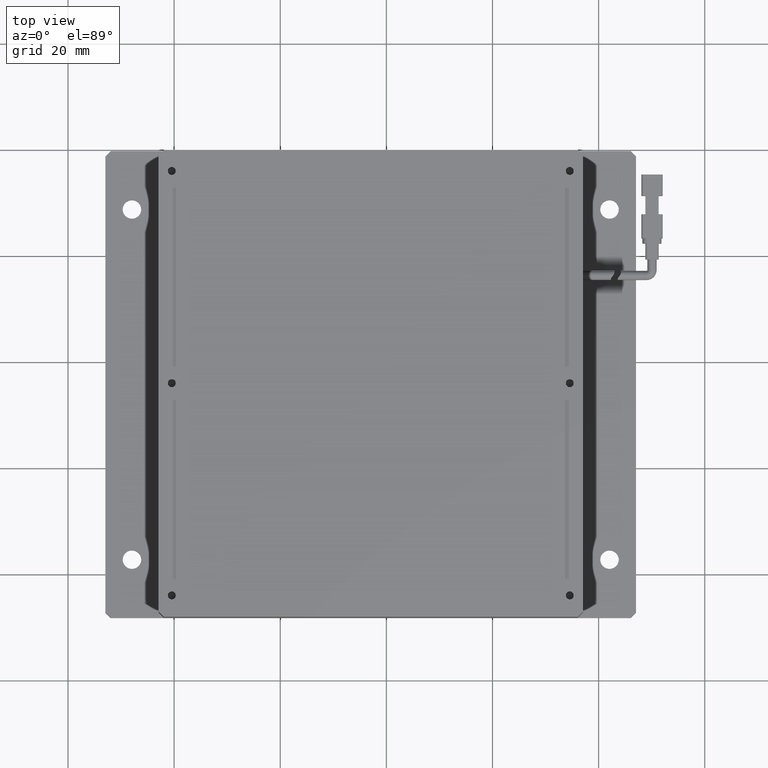
[diagram: clean part render]
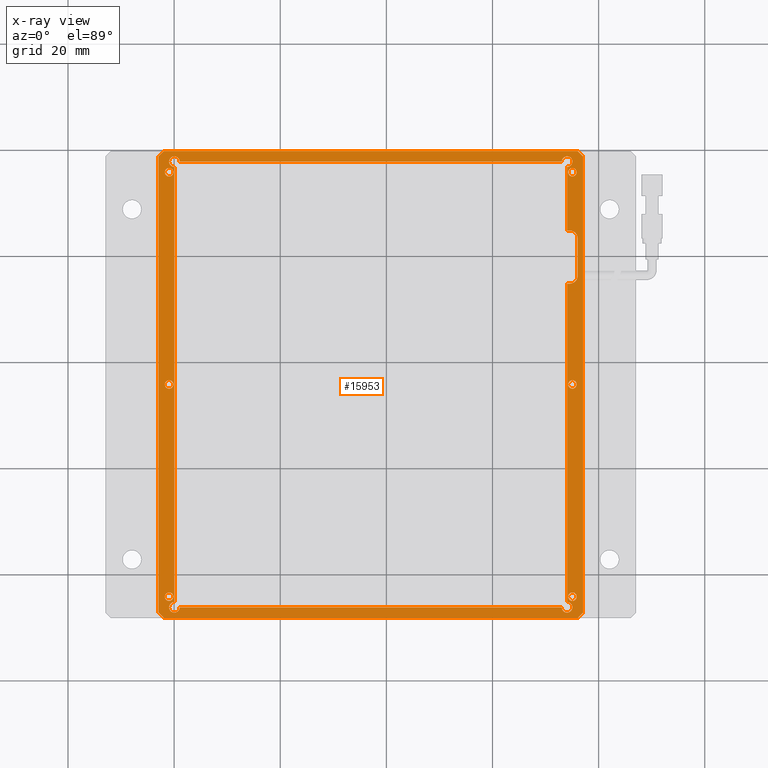
[diagram: x-ray — body ghosted, one internal face saturated and labeled with its STEP entity id]
A machine part, top view, then the same camera in x-ray: the body is ghosted and one INTERNAL B-rep face — a face not visible from any outside direction — is saturated and labeled: STEP entity #15953.
In plain terms, the highlighted planar face has unit normal (0, 0, -1).
Its self-contained STEP definition (entity closure, byte-faithful):
#40 = PLANE ( 'NONE',  #13356 ) ;
#41 = CIRCLE ( 'NONE', #12259, 0.9999999999999974500 ) ;
#86 = CARTESIAN_POINT ( 'NONE',  ( -20.94768995799924800, -4.200076365024778500, -4.547577592273199800E-012 ) ) ;
#107 = CIRCLE ( 'NONE', #8220, 0.7999999999999986000 ) ;
#110 = EDGE_LOOP ( 'NONE', ( #2305, #6990 ) ) ;
#448 = VERTEX_POINT ( 'NONE', #789 ) ;
#537 = VERTEX_POINT ( 'NONE', #3235 ) ;
#638 = CARTESIAN_POINT ( 'NONE',  ( 53.05231004200079100, 37.79992363497522900, -4.547577592273199800E-012 ) ) ;
#675 = CIRCLE ( 'NONE', #10622, 0.7999999999999951600 ) ;
#739 = ORIENTED_EDGE ( 'NONE', *, *, #7200, .T. ) ;
#789 = CARTESIAN_POINT ( 'NONE',  ( 56.05231004200073400, -48.20007636502477800, -4.550179677487165000E-012 ) ) ;
#844 = CARTESIAN_POINT ( 'NONE',  ( 54.25231004200075800, 35.79992363497521500, -4.547577592273199800E-012 ) ) ;
#857 = DIRECTION ( 'NONE',  ( -1.000000000000000000, 0.0000000000000000000, 0.0000000000000000000 ) ) ;
#868 = VERTEX_POINT ( 'NONE', #11797 ) ;
#874 = VERTEX_POINT ( 'NONE', #12336 ) ;
#885 = VERTEX_POINT ( 'NONE', #12073 ) ;
#893 = CARTESIAN_POINT ( 'NONE',  ( -19.94768995799928700, -46.20007636502478500, -4.547577592273199800E-012 ) ) ;
#973 = CARTESIAN_POINT ( 'NONE',  ( -21.94768995799924800, -48.20007636502477800, -4.547577592273199800E-012 ) ) ;
#981 = ORIENTED_EDGE ( 'NONE', *, *, #15562, .T. ) ;
#985 = ORIENTED_EDGE ( 'NONE', *, *, #17625, .T. ) ;
#1054 = FACE_OUTER_BOUND ( 'NONE', #2012, .T. ) ;
#1078 = EDGE_CURVE ( 'NONE', #3083, #13991, #41, .T. ) ;
#1183 = AXIS2_PLACEMENT_3D ( 'NONE', #4457, #13961, #5846 ) ;
#1335 = DIRECTION ( 'NONE',  ( 1.000000000000000000, 0.0000000000000000000, 0.0000000000000000000 ) ) ;
#1341 = VECTOR ( 'NONE', #9112, 1000.000000000000000 ) ;
#1434 = ORIENTED_EDGE ( 'NONE', *, *, #8481, .T. ) ;
#1465 = DIRECTION ( 'NONE',  ( -1.000000000000000000, 0.0000000000000000000, 0.0000000000000000000 ) ) ;
#1515 = VECTOR ( 'NONE', #15545, 1000.000000000000000 ) ;
#1519 = AXIS2_PLACEMENT_3D ( 'NONE', #17766, #9677, #1335 ) ;
#1550 = EDGE_CURVE ( 'NONE', #11940, #6948, #15685, .T. ) ;
#1619 = EDGE_LOOP ( 'NONE', ( #5171, #1739 ) ) ;
#1739 = ORIENTED_EDGE ( 'NONE', *, *, #1550, .T. ) ;
#1797 = CARTESIAN_POINT ( 'NONE',  ( -21.74768995799924600, 35.79992363497524400, -4.547577592273199800E-012 ) ) ;
#1882 = DIRECTION ( 'NONE',  ( -1.000000000000000000, -0.0000000000000000000, 0.0000000000000000000 ) ) ;
#1887 = CIRCLE ( 'NONE', #6848, 0.7999999999999986000 ) ;
#1960 = VECTOR ( 'NONE', #3756, 1000.000000000000100 ) ;
#1982 = ORIENTED_EDGE ( 'NONE', *, *, #9308, .T. ) ;
#1994 = CIRCLE ( 'NONE', #14494, 1.500000000000001300 ) ;
#2012 = EDGE_LOOP ( 'NONE', ( #2193, #4552, #6192, #12768, #8351, #13719, #9264, #12064 ) ) ;
#2104 = VERTEX_POINT ( 'NONE', #10004 ) ;
#2189 = EDGE_CURVE ( 'NONE', #16963, #11977, #17801, .T. ) ;
#2193 = ORIENTED_EDGE ( 'NONE', *, *, #5331, .T. ) ;
#2219 = CARTESIAN_POINT ( 'NONE',  ( -20.94768995799924800, -44.20007636502477800, -4.547577592273199800E-012 ) ) ;
#2243 = CARTESIAN_POINT ( 'NONE',  ( -18.94768995799929100, -46.20007636502479900, -4.547577592273199800E-012 ) ) ;
#2292 = EDGE_CURVE ( 'NONE', #2104, #16566, #8921, .T. ) ;
#2301 = DIRECTION ( 'NONE',  ( -1.000000000000000000, 0.0000000000000000000, 0.0000000000000000000 ) ) ;
#2305 = ORIENTED_EDGE ( 'NONE', *, *, #2292, .T. ) ;
#2310 = VERTEX_POINT ( 'NONE', #6438 ) ;
#2376 = CARTESIAN_POINT ( 'NONE',  ( -22.94768995799925900, 38.79992363497520100, -4.547577592273199800E-012 ) ) ;
#2420 = AXIS2_PLACEMENT_3D ( 'NONE', #15618, #15330, #15208 ) ;
#2424 = CIRCLE ( 'NONE', #11770, 0.7999999999999986000 ) ;
#2527 = LINE ( 'NONE', #12565, #6269 ) ;
#2568 = CARTESIAN_POINT ( 'NONE',  ( -20.14768995799924800, 35.79992363497524400, -4.547577592273199800E-012 ) ) ;
#2706 = CARTESIAN_POINT ( 'NONE',  ( 55.05231004200074800, -44.20007636502477800, -4.547577592273199800E-012 ) ) ;
#2746 = VERTEX_POINT ( 'NONE', #2243 ) ;
#2775 = CARTESIAN_POINT ( 'NONE',  ( -20.94768995799928700, -46.20007636502478500, -4.547577592273199800E-012 ) ) ;
#2842 = CIRCLE ( 'NONE', #6580, 1.000000000000000900 ) ;
#2853 = CARTESIAN_POINT ( 'NONE',  ( -22.94768995799925200, 38.79992363497521500, -4.548228113576691100E-012 ) ) ;
#2919 = CARTESIAN_POINT ( 'NONE',  ( 54.05231004200079100, 39.79992363497522200, -4.547577592273199800E-012 ) ) ;
#2923 = EDGE_LOOP ( 'NONE', ( #13290, #14742 ) ) ;
#3019 = VECTOR ( 'NONE', #10377, 1000.000000000000000 ) ;
#3083 = VERTEX_POINT ( 'NONE', #9641 ) ;
#3090 = EDGE_CURVE ( 'NONE', #6249, #6785, #5089, .T. ) ;
#3133 = EDGE_CURVE ( 'NONE', #2310, #16216, #1994, .T. ) ;
#3226 = ORIENTED_EDGE ( 'NONE', *, *, #15020, .T. ) ;
#3229 = DIRECTION ( 'NONE',  ( 0.0000000000000000000, 0.0000000000000000000, 1.000000000000000000 ) ) ;
#3235 = CARTESIAN_POINT ( 'NONE',  ( -19.94768995799928700, -45.20007636502478500, -4.547577592273199800E-012 ) ) ;
#3362 = CIRCLE ( 'NONE', #1519, 1.500000000000001300 ) ;
#3585 = EDGE_CURVE ( 'NONE', #11977, #16963, #7909, .T. ) ;
#3670 = DIRECTION ( 'NONE',  ( -1.000000000000000000, 0.0000000000000000000, 0.0000000000000000000 ) ) ;
#3756 = DIRECTION ( 'NONE',  ( 0.7071067811865408000, 0.7071067811865541200, 0.0000000000000000000 ) ) ;
#3817 = DIRECTION ( 'NONE',  ( -0.0000000000000000000, -1.000000000000000000, 0.0000000000000000000 ) ) ;
#3859 = EDGE_LOOP ( 'NONE', ( #15822, #17573, #8525, #981, #9547, #17242, #10624, #13864, #17180, #10233, #7062, #985, #9882, #14677, #1434, #10874 ) ) ;
#3894 = DIRECTION ( 'NONE',  ( -1.000000000000000000, 0.0000000000000000000, 0.0000000000000000000 ) ) ;
#3956 = DIRECTION ( 'NONE',  ( 0.0000000000000000000, 0.0000000000000000000, 1.000000000000000000 ) ) ;
#4024 = CARTESIAN_POINT ( 'NONE',  ( 55.05231004200074800, -4.200076365024778500, -4.547577592273199800E-012 ) ) ;
#4147 = DIRECTION ( 'NONE',  ( -1.000000000000000000, 0.0000000000000000000, 0.0000000000000000000 ) ) ;
#4155 = AXIS2_PLACEMENT_3D ( 'NONE', #6828, #16300, #8222 ) ;
#4424 = CARTESIAN_POINT ( 'NONE',  ( 56.05231004200074800, 14.79992363497521200, -4.547577592273199800E-012 ) ) ;
#4457 = CARTESIAN_POINT ( 'NONE',  ( 54.05231004200079100, 37.79992363497522900, -4.547577592273199800E-012 ) ) ;
#4470 = EDGE_LOOP ( 'NONE', ( #739, #8317 ) ) ;
#4506 = AXIS2_PLACEMENT_3D ( 'NONE', #17283, #9197, #857 ) ;
#4552 = ORIENTED_EDGE ( 'NONE', *, *, #9924, .T. ) ;
#4677 = ORIENTED_EDGE ( 'NONE', *, *, #2189, .T. ) ;
#4723 = CARTESIAN_POINT ( 'NONE',  ( -22.94768995799924800, -48.20007636502477800, -4.547577592273199800E-012 ) ) ;
#4805 = FACE_BOUND ( 'NONE', #11012, .T. ) ;
#4818 = AXIS2_PLACEMENT_3D ( 'NONE', #8161, #17593, #9519 ) ;
#4924 = VERTEX_POINT ( 'NONE', #8513 ) ;
#5089 = LINE ( 'NONE', #9470, #1341 ) ;
#5171 = ORIENTED_EDGE ( 'NONE', *, *, #12489, .T. ) ;
#5277 = VERTEX_POINT ( 'NONE', #638 ) ;
#5331 = EDGE_CURVE ( 'NONE', #448, #8791, #9810, .T. ) ;
#5334 = AXIS2_PLACEMENT_3D ( 'NONE', #4024, #3956, #3894 ) ;
#5401 = CIRCLE ( 'NONE', #13705, 0.9999999999999974500 ) ;
#5494 = DIRECTION ( 'NONE',  ( 1.000000000000000000, 0.0000000000000000000, 0.0000000000000000000 ) ) ;
#5556 = EDGE_CURVE ( 'NONE', #874, #15688, #675, .T. ) ;
#5559 = DIRECTION ( 'NONE',  ( 0.0000000000000000000, 0.0000000000000000000, 1.000000000000000000 ) ) ;
#5623 = LINE ( 'NONE', #2919, #12828 ) ;
#5633 = LINE ( 'NONE', #16775, #12418 ) ;
#5672 = CARTESIAN_POINT ( 'NONE',  ( 54.55231004200074800, 16.29992363497521200, -4.547577592273199800E-012 ) ) ;
#5696 = VECTOR ( 'NONE', #10929, 1000.000000000000000 ) ;
#5747 = DIRECTION ( 'NONE',  ( -1.000000000000000000, 0.0000000000000000000, 0.0000000000000000000 ) ) ;
#5799 = DIRECTION ( 'NONE',  ( 0.0000000000000000000, 0.0000000000000000000, -1.000000000000000000 ) ) ;
#5804 = DIRECTION ( 'NONE',  ( 1.000000000000000000, 0.0000000000000000000, 0.0000000000000000000 ) ) ;
#5833 = CARTESIAN_POINT ( 'NONE',  ( -20.94768995799924800, 35.79992363497524400, -4.547577592273199800E-012 ) ) ;
#5846 = DIRECTION ( 'NONE',  ( -1.000000000000000000, 0.0000000000000000000, 0.0000000000000000000 ) ) ;
#5864 = VERTEX_POINT ( 'NONE', #8720 ) ;
#5990 = VERTEX_POINT ( 'NONE', #11784 ) ;
#6137 = LINE ( 'NONE', #9502, #5696 ) ;
#6180 = VECTOR ( 'NONE', #1882, 1000.000000000000000 ) ;
#6192 = ORIENTED_EDGE ( 'NONE', *, *, #3090, .T. ) ;
#6207 = CARTESIAN_POINT ( 'NONE',  ( -20.94768995799924800, -44.20007636502477800, -4.547577592273199800E-012 ) ) ;
#6249 = VERTEX_POINT ( 'NONE', #16589 ) ;
#6269 = VECTOR ( 'NONE', #7276, 1000.000000000000000 ) ;
#6438 = CARTESIAN_POINT ( 'NONE',  ( 54.55231004200074800, 14.79992363497521200, -4.547577592273199800E-012 ) ) ;
#6580 = AXIS2_PLACEMENT_3D ( 'NONE', #7654, #17089, #8986 ) ;
#6583 = EDGE_CURVE ( 'NONE', #16216, #8896, #17317, .T. ) ;
#6670 = CARTESIAN_POINT ( 'NONE',  ( 55.05231004200074800, 35.79992363497521500, -4.547577592273199800E-012 ) ) ;
#6728 = DIRECTION ( 'NONE',  ( 0.0000000000000000000, 1.000000000000000000, 0.0000000000000000000 ) ) ;
#6732 = AXIS2_PLACEMENT_3D ( 'NONE', #2219, #11834, #3670 ) ;
#6785 = VERTEX_POINT ( 'NONE', #2853 ) ;
#6828 = CARTESIAN_POINT ( 'NONE',  ( 55.05231004200074800, 35.79992363497521500, -4.547577592273199800E-012 ) ) ;
#6848 = AXIS2_PLACEMENT_3D ( 'NONE', #5833, #15337, #7248 ) ;
#6948 = VERTEX_POINT ( 'NONE', #11510 ) ;
#6974 = CIRCLE ( 'NONE', #4506, 0.9999999999999974500 ) ;
#6990 = ORIENTED_EDGE ( 'NONE', *, *, #12092, .T. ) ;
#7033 = VECTOR ( 'NONE', #5804, 1000.000000000000000 ) ;
#7062 = ORIENTED_EDGE ( 'NONE', *, *, #11281, .T. ) ;
#7175 = CIRCLE ( 'NONE', #4155, 0.7999999999999951600 ) ;
#7200 = EDGE_CURVE ( 'NONE', #16036, #8601, #16640, .T. ) ;
#7248 = DIRECTION ( 'NONE',  ( -1.000000000000000000, 0.0000000000000000000, 0.0000000000000000000 ) ) ;
#7276 = DIRECTION ( 'NONE',  ( 0.0000000000000000000, 1.000000000000000000, 0.0000000000000000000 ) ) ;
#7317 = LINE ( 'NONE', #8039, #10933 ) ;
#7423 = VECTOR ( 'NONE', #3817, 1000.000000000000000 ) ;
#7460 = VERTEX_POINT ( 'NONE', #11656 ) ;
#7533 = CIRCLE ( 'NONE', #17484, 0.7999999999999951600 ) ;
#7630 = DIRECTION ( 'NONE',  ( -1.000000000000000000, 0.0000000000000000000, 0.0000000000000000000 ) ) ;
#7654 = CARTESIAN_POINT ( 'NONE',  ( 54.05231004200079100, -46.20007636502478500, -4.547577592273199800E-012 ) ) ;
#7712 = EDGE_CURVE ( 'NONE', #9837, #448, #6137, .T. ) ;
#7736 = VECTOR ( 'NONE', #10662, 1000.000000000000100 ) ;
#7777 = ORIENTED_EDGE ( 'NONE', *, *, #3585, .T. ) ;
#7850 = CIRCLE ( 'NONE', #16986, 0.9999999999999974500 ) ;
#7854 = EDGE_CURVE ( 'NONE', #12481, #5277, #14640, .T. ) ;
#7862 = CARTESIAN_POINT ( 'NONE',  ( -19.94768995799928700, 36.79992363497522900, -4.547577592273199800E-012 ) ) ;
#7868 = VERTEX_POINT ( 'NONE', #8555 ) ;
#7881 = VERTEX_POINT ( 'NONE', #9970 ) ;
#7909 = CIRCLE ( 'NONE', #2420, 0.7999999999999951600 ) ;
#7960 = CARTESIAN_POINT ( 'NONE',  ( 57.05231004200075500, -48.20007636502477800, -4.547577592273199800E-012 ) ) ;
#8039 = CARTESIAN_POINT ( 'NONE',  ( 56.05231004200076200, 39.79992363497522200, -4.547577592273199800E-012 ) ) ;
#8067 = DIRECTION ( 'NONE',  ( -1.000000000000000000, 0.0000000000000000000, 0.0000000000000000000 ) ) ;
#8079 = FACE_BOUND ( 'NONE', #3859, .T. ) ;
#8161 = CARTESIAN_POINT ( 'NONE',  ( -20.94768995799924800, 35.79992363497524400, -4.547577592273199800E-012 ) ) ;
#8212 = CARTESIAN_POINT ( 'NONE',  ( 54.05231004200079100, 36.79992363497522900, -4.547577592273199800E-012 ) ) ;
#8220 = AXIS2_PLACEMENT_3D ( 'NONE', #86, #9791, #1465 ) ;
#8222 = DIRECTION ( 'NONE',  ( -1.000000000000000000, 0.0000000000000000000, 0.0000000000000000000 ) ) ;
#8317 = ORIENTED_EDGE ( 'NONE', *, *, #16512, .T. ) ;
#8351 = ORIENTED_EDGE ( 'NONE', *, *, #16166, .T. ) ;
#8378 = VERTEX_POINT ( 'NONE', #16922 ) ;
#8478 = FACE_BOUND ( 'NONE', #11379, .T. ) ;
#8481 = EDGE_CURVE ( 'NONE', #868, #3083, #6974, .T. ) ;
#8497 = VERTEX_POINT ( 'NONE', #11873 ) ;
#8513 = CARTESIAN_POINT ( 'NONE',  ( 54.05231004200079100, 24.79992363497521900, -4.547577592273199800E-012 ) ) ;
#8525 = ORIENTED_EDGE ( 'NONE', *, *, #11719, .T. ) ;
#8555 = CARTESIAN_POINT ( 'NONE',  ( 54.55231004200074800, 24.79992363497521900, -4.547577592273199800E-012 ) ) ;
#8601 = VERTEX_POINT ( 'NONE', #2568 ) ;
#8720 = CARTESIAN_POINT ( 'NONE',  ( -21.74768995799924600, -44.20007636502477800, -4.547577592273199800E-012 ) ) ;
#8791 = VERTEX_POINT ( 'NONE', #11242 ) ;
#8896 = VERTEX_POINT ( 'NONE', #10052 ) ;
#8921 = CIRCLE ( 'NONE', #11304, 0.7999999999999986000 ) ;
#8941 = LINE ( 'NONE', #14184, #1515 ) ;
#8956 = CARTESIAN_POINT ( 'NONE',  ( -21.94768995799926300, 39.79992363497522200, -4.550179677487165000E-012 ) ) ;
#8986 = DIRECTION ( 'NONE',  ( -1.000000000000000000, -6.938893903907222100E-015, 0.0000000000000000000 ) ) ;
#9112 = DIRECTION ( 'NONE',  ( -0.0000000000000000000, 1.000000000000000000, 0.0000000000000000000 ) ) ;
#9197 = DIRECTION ( 'NONE',  ( 0.0000000000000000000, 0.0000000000000000000, 1.000000000000000000 ) ) ;
#9264 = ORIENTED_EDGE ( 'NONE', *, *, #16914, .T. ) ;
#9308 = EDGE_CURVE ( 'NONE', #7881, #5864, #12602, .T. ) ;
#9470 = CARTESIAN_POINT ( 'NONE',  ( -22.94768995799924800, -48.20007636502477800, -4.547577592273199800E-012 ) ) ;
#9502 = CARTESIAN_POINT ( 'NONE',  ( 57.05231004200075500, -47.20007636502479200, -4.547577592273199800E-012 ) ) ;
#9519 = DIRECTION ( 'NONE',  ( -1.000000000000000000, 0.0000000000000000000, 0.0000000000000000000 ) ) ;
#9547 = ORIENTED_EDGE ( 'NONE', *, *, #13275, .T. ) ;
#9641 = CARTESIAN_POINT ( 'NONE',  ( -20.94768995799928700, 37.79992363497522900, -4.547577592273199800E-012 ) ) ;
#9677 = DIRECTION ( 'NONE',  ( 0.0000000000000000000, 0.0000000000000000000, 1.000000000000000000 ) ) ;
#9791 = DIRECTION ( 'NONE',  ( 0.0000000000000000000, 0.0000000000000000000, 1.000000000000000000 ) ) ;
#9810 = LINE ( 'NONE', #4723, #6180 ) ;
#9837 = VERTEX_POINT ( 'NONE', #15813 ) ;
#9882 = ORIENTED_EDGE ( 'NONE', *, *, #7854, .T. ) ;
#9924 = EDGE_CURVE ( 'NONE', #8791, #6249, #14894, .T. ) ;
#9970 = CARTESIAN_POINT ( 'NONE',  ( -20.14768995799924800, -44.20007636502477800, -4.547577592273199800E-012 ) ) ;
#10004 = CARTESIAN_POINT ( 'NONE',  ( -21.74768995799924600, -4.200076365024778500, -4.547577592273199800E-012 ) ) ;
#10052 = CARTESIAN_POINT ( 'NONE',  ( 56.05231004200074800, 23.29992363497523300, -4.547577592273199800E-012 ) ) ;
#10089 = DIRECTION ( 'NONE',  ( -1.000000000000000000, 0.0000000000000000000, -0.0000000000000000000 ) ) ;
#10135 = VECTOR ( 'NONE', #10089, 1000.000000000000000 ) ;
#10233 = ORIENTED_EDGE ( 'NONE', *, *, #12519, .T. ) ;
#10246 = DIRECTION ( 'NONE',  ( -1.000000000000000000, 0.0000000000000000000, 0.0000000000000000000 ) ) ;
#10377 = DIRECTION ( 'NONE',  ( 1.000000000000000000, 0.0000000000000000000, 0.0000000000000000000 ) ) ;
#10435 = CARTESIAN_POINT ( 'NONE',  ( -22.94768995799924800, 39.79992363497522200, -4.547577592273199800E-012 ) ) ;
#10500 = CARTESIAN_POINT ( 'NONE',  ( 56.05231004200074800, 16.29992363497521200, -4.547577592273199800E-012 ) ) ;
#10579 = DIRECTION ( 'NONE',  ( 0.0000000000000000000, 0.0000000000000000000, 1.000000000000000000 ) ) ;
#10611 = DIRECTION ( 'NONE',  ( 0.0000000000000000000, 0.0000000000000000000, 1.000000000000000000 ) ) ;
#10622 = AXIS2_PLACEMENT_3D ( 'NONE', #6670, #16141, #8067 ) ;
#10624 = ORIENTED_EDGE ( 'NONE', *, *, #13162, .T. ) ;
#10662 = DIRECTION ( 'NONE',  ( -0.7071067811865474600, 0.7071067811865474600, 0.0000000000000000000 ) ) ;
#10855 = CARTESIAN_POINT ( 'NONE',  ( 54.25231004200075800, -4.200076365024778500, -4.547577592273199800E-012 ) ) ;
#10874 = ORIENTED_EDGE ( 'NONE', *, *, #1078, .T. ) ;
#10881 = CARTESIAN_POINT ( 'NONE',  ( 55.85231004200074500, -4.200076365024778500, -4.547577592273199800E-012 ) ) ;
#10929 = DIRECTION ( 'NONE',  ( -0.7071067811865524600, -0.7071067811865426900, 0.0000000000000000000 ) ) ;
#10933 = VECTOR ( 'NONE', #14746, 1000.000000000000100 ) ;
#10934 = EDGE_CURVE ( 'NONE', #537, #16435, #7850, .T. ) ;
#11012 = EDGE_LOOP ( 'NONE', ( #4677, #7777 ) ) ;
#11242 = CARTESIAN_POINT ( 'NONE',  ( -21.94768995799925200, -48.20007636502477800, -4.548228113576691100E-012 ) ) ;
#11281 = EDGE_CURVE ( 'NONE', #7868, #4924, #5633, .T. ) ;
#11304 = AXIS2_PLACEMENT_3D ( 'NONE', #13462, #12113, #12058 ) ;
#11379 = EDGE_LOOP ( 'NONE', ( #3226, #1982 ) ) ;
#11455 = CARTESIAN_POINT ( 'NONE',  ( -19.94768995799928700, -46.20007636502478500, -4.547577592273199800E-012 ) ) ;
#11510 = CARTESIAN_POINT ( 'NONE',  ( 54.25231004200075800, -44.20007636502477800, -4.547577592273199800E-012 ) ) ;
#11632 = FACE_BOUND ( 'NONE', #2923, .T. ) ;
#11656 = CARTESIAN_POINT ( 'NONE',  ( 54.05231004200079100, -45.20007636502478500, -4.547577592273199800E-012 ) ) ;
#11719 = EDGE_CURVE ( 'NONE', #16435, #2746, #5401, .T. ) ;
#11770 = AXIS2_PLACEMENT_3D ( 'NONE', #6207, #15683, #7630 ) ;
#11784 = CARTESIAN_POINT ( 'NONE',  ( 54.05231004200079100, 14.79992363497521200, -4.547577592273199800E-012 ) ) ;
#11797 = CARTESIAN_POINT ( 'NONE',  ( -18.94768995799928700, 37.79992363497524400, -4.547577592273199800E-012 ) ) ;
#11834 = DIRECTION ( 'NONE',  ( 0.0000000000000000000, 0.0000000000000000000, 1.000000000000000000 ) ) ;
#11873 = CARTESIAN_POINT ( 'NONE',  ( 56.05231004200076200, 39.79992363497522200, -4.548878634880182400E-012 ) ) ;
#11940 = VERTEX_POINT ( 'NONE', #12080 ) ;
#11977 = VERTEX_POINT ( 'NONE', #10881 ) ;
#12051 = FACE_BOUND ( 'NONE', #4470, .T. ) ;
#12058 = DIRECTION ( 'NONE',  ( -1.000000000000000000, 0.0000000000000000000, 0.0000000000000000000 ) ) ;
#12064 = ORIENTED_EDGE ( 'NONE', *, *, #7712, .T. ) ;
#12073 = CARTESIAN_POINT ( 'NONE',  ( 57.05231004200075500, 38.79992363497521500, -4.550179677487165000E-012 ) ) ;
#12080 = CARTESIAN_POINT ( 'NONE',  ( 55.85231004200074500, -44.20007636502477800, -4.547577592273199800E-012 ) ) ;
#12092 = EDGE_CURVE ( 'NONE', #16566, #2104, #107, .T. ) ;
#12113 = DIRECTION ( 'NONE',  ( 0.0000000000000000000, 0.0000000000000000000, 1.000000000000000000 ) ) ;
#12259 = AXIS2_PLACEMENT_3D ( 'NONE', #17103, #17121, #5747 ) ;
#12295 = DIRECTION ( 'NONE',  ( 0.0000000000000000000, 0.0000000000000000000, 1.000000000000000000 ) ) ;
#12336 = CARTESIAN_POINT ( 'NONE',  ( 55.85231004200074500, 35.79992363497521500, -4.547577592273199800E-012 ) ) ;
#12395 = EDGE_CURVE ( 'NONE', #8497, #885, #7317, .T. ) ;
#12418 = VECTOR ( 'NONE', #16837, 1000.000000000000000 ) ;
#12481 = VERTEX_POINT ( 'NONE', #8212 ) ;
#12489 = EDGE_CURVE ( 'NONE', #6948, #11940, #7533, .T. ) ;
#12499 = DIRECTION ( 'NONE',  ( 0.0000000000000000000, 1.000000000000000000, 0.0000000000000000000 ) ) ;
#12519 = EDGE_CURVE ( 'NONE', #8896, #7868, #3362, .T. ) ;
#12528 = DIRECTION ( 'NONE',  ( -0.0000000000000000000, -1.000000000000000000, -0.0000000000000000000 ) ) ;
#12565 = CARTESIAN_POINT ( 'NONE',  ( 54.05231004200079100, 39.79992363497522200, -4.547577592273199800E-012 ) ) ;
#12602 = CIRCLE ( 'NONE', #6732, 0.7999999999999986000 ) ;
#12619 = EDGE_CURVE ( 'NONE', #13991, #537, #17666, .T. ) ;
#12768 = ORIENTED_EDGE ( 'NONE', *, *, #15156, .T. ) ;
#12796 = DIRECTION ( 'NONE',  ( -1.000000000000000000, 0.0000000000000000000, 0.0000000000000000000 ) ) ;
#12828 = VECTOR ( 'NONE', #12499, 1000.000000000000000 ) ;
#12913 = LINE ( 'NONE', #2376, #1960 ) ;
#13162 = EDGE_CURVE ( 'NONE', #5990, #2310, #14651, .T. ) ;
#13275 = EDGE_CURVE ( 'NONE', #8378, #7460, #2842, .T. ) ;
#13290 = ORIENTED_EDGE ( 'NONE', *, *, #16345, .T. ) ;
#13298 = FACE_BOUND ( 'NONE', #110, .T. ) ;
#13356 = AXIS2_PLACEMENT_3D ( 'NONE', #13916, #5799, #15298 ) ;
#13462 = CARTESIAN_POINT ( 'NONE',  ( -20.94768995799924800, -4.200076365024778500, -4.547577592273199800E-012 ) ) ;
#13475 = CARTESIAN_POINT ( 'NONE',  ( 55.05231004200074800, -44.20007636502477800, -4.547577592273199800E-012 ) ) ;
#13694 = VECTOR ( 'NONE', #6728, 1000.000000000000000 ) ;
#13705 = AXIS2_PLACEMENT_3D ( 'NONE', #11455, #3229, #12796 ) ;
#13719 = ORIENTED_EDGE ( 'NONE', *, *, #12395, .T. ) ;
#13864 = ORIENTED_EDGE ( 'NONE', *, *, #3133, .T. ) ;
#13916 = CARTESIAN_POINT ( 'NONE',  ( -22.94768995799924800, 39.79992363497522200, -4.547577592273199800E-012 ) ) ;
#13921 = LINE ( 'NONE', #10435, #3019 ) ;
#13941 = CARTESIAN_POINT ( 'NONE',  ( -20.14768995799924800, -4.200076365024778500, -4.547577592273199800E-012 ) ) ;
#13961 = DIRECTION ( 'NONE',  ( 0.0000000000000000000, 0.0000000000000000000, 1.000000000000000000 ) ) ;
#13991 = VERTEX_POINT ( 'NONE', #7862 ) ;
#14029 = VECTOR ( 'NONE', #12528, 1000.000000000000000 ) ;
#14163 = CARTESIAN_POINT ( 'NONE',  ( -22.94768995799924800, 37.79992363497522900, -4.547577592273199800E-012 ) ) ;
#14184 = CARTESIAN_POINT ( 'NONE',  ( -22.94768995799924800, -46.20007636502479900, -4.547577592273199800E-012 ) ) ;
#14494 = AXIS2_PLACEMENT_3D ( 'NONE', #5672, #5559, #5494 ) ;
#14612 = LINE ( 'NONE', #7960, #7423 ) ;
#14640 = CIRCLE ( 'NONE', #1183, 1.000000000000000900 ) ;
#14651 = LINE ( 'NONE', #4424, #7033 ) ;
#14677 = ORIENTED_EDGE ( 'NONE', *, *, #16045, .T. ) ;
#14742 = ORIENTED_EDGE ( 'NONE', *, *, #5556, .T. ) ;
#14746 = DIRECTION ( 'NONE',  ( 0.7071067811865474600, -0.7071067811865474600, 0.0000000000000000000 ) ) ;
#14826 = CARTESIAN_POINT ( 'NONE',  ( 56.05231004200074800, 39.79992363497522200, -4.547577592273199800E-012 ) ) ;
#14894 = LINE ( 'NONE', #973, #7736 ) ;
#15020 = EDGE_CURVE ( 'NONE', #5864, #7881, #2424, .T. ) ;
#15156 = EDGE_CURVE ( 'NONE', #6785, #16753, #12913, .T. ) ;
#15208 = DIRECTION ( 'NONE',  ( -1.000000000000000000, 0.0000000000000000000, 0.0000000000000000000 ) ) ;
#15246 = FACE_BOUND ( 'NONE', #1619, .T. ) ;
#15298 = DIRECTION ( 'NONE',  ( -1.000000000000000000, 0.0000000000000000000, -0.0000000000000000000 ) ) ;
#15330 = DIRECTION ( 'NONE',  ( 0.0000000000000000000, 0.0000000000000000000, 1.000000000000000000 ) ) ;
#15337 = DIRECTION ( 'NONE',  ( 0.0000000000000000000, 0.0000000000000000000, 1.000000000000000000 ) ) ;
#15545 = DIRECTION ( 'NONE',  ( 1.000000000000000000, -0.0000000000000000000, 0.0000000000000000000 ) ) ;
#15562 = EDGE_CURVE ( 'NONE', #2746, #8378, #8941, .T. ) ;
#15618 = CARTESIAN_POINT ( 'NONE',  ( 55.05231004200074800, -4.200076365024778500, -4.547577592273199800E-012 ) ) ;
#15683 = DIRECTION ( 'NONE',  ( 0.0000000000000000000, 0.0000000000000000000, 1.000000000000000000 ) ) ;
#15685 = CIRCLE ( 'NONE', #16713, 0.7999999999999951600 ) ;
#15688 = VERTEX_POINT ( 'NONE', #844 ) ;
#15813 = CARTESIAN_POINT ( 'NONE',  ( 57.05231004200074100, -47.20007636502480600, -4.548228113576691100E-012 ) ) ;
#15822 = ORIENTED_EDGE ( 'NONE', *, *, #12619, .T. ) ;
#15953 = ADVANCED_FACE ( 'NONE', ( #1054, #8478, #13298, #12051, #15246, #4805, #11632, #8079 ), #40, .T. ) ;
#16036 = VERTEX_POINT ( 'NONE', #1797 ) ;
#16045 = EDGE_CURVE ( 'NONE', #5277, #868, #17338, .T. ) ;
#16141 = DIRECTION ( 'NONE',  ( 0.0000000000000000000, 0.0000000000000000000, 1.000000000000000000 ) ) ;
#16166 = EDGE_CURVE ( 'NONE', #16753, #8497, #13921, .T. ) ;
#16216 = VERTEX_POINT ( 'NONE', #10500 ) ;
#16300 = DIRECTION ( 'NONE',  ( 0.0000000000000000000, 0.0000000000000000000, 1.000000000000000000 ) ) ;
#16345 = EDGE_CURVE ( 'NONE', #15688, #874, #7175, .T. ) ;
#16435 = VERTEX_POINT ( 'NONE', #2775 ) ;
#16512 = EDGE_CURVE ( 'NONE', #8601, #16036, #1887, .T. ) ;
#16566 = VERTEX_POINT ( 'NONE', #13941 ) ;
#16573 = CARTESIAN_POINT ( 'NONE',  ( -19.94768995799928700, 39.79992363497522200, -4.547577592273199800E-012 ) ) ;
#16589 = CARTESIAN_POINT ( 'NONE',  ( -22.94768995799924500, -47.20007636502478500, -4.550179677487165000E-012 ) ) ;
#16640 = CIRCLE ( 'NONE', #4818, 0.7999999999999986000 ) ;
#16713 = AXIS2_PLACEMENT_3D ( 'NONE', #13475, #10611, #10246 ) ;
#16753 = VERTEX_POINT ( 'NONE', #8956 ) ;
#16775 = CARTESIAN_POINT ( 'NONE',  ( 56.05231004200074800, 24.79992363497521900, -4.547577592273199800E-012 ) ) ;
#16837 = DIRECTION ( 'NONE',  ( -1.000000000000000000, 0.0000000000000000000, -0.0000000000000000000 ) ) ;
#16914 = EDGE_CURVE ( 'NONE', #885, #9837, #14612, .T. ) ;
#16922 = CARTESIAN_POINT ( 'NONE',  ( 53.05231004200079100, -46.20007636502479200, -4.547577592273199800E-012 ) ) ;
#16963 = VERTEX_POINT ( 'NONE', #10855 ) ;
#16986 = AXIS2_PLACEMENT_3D ( 'NONE', #893, #10579, #2301 ) ;
#17089 = DIRECTION ( 'NONE',  ( 0.0000000000000000000, 0.0000000000000000000, 1.000000000000000000 ) ) ;
#17103 = CARTESIAN_POINT ( 'NONE',  ( -19.94768995799928700, 37.79992363497522900, -4.547577592273199800E-012 ) ) ;
#17121 = DIRECTION ( 'NONE',  ( 0.0000000000000000000, 0.0000000000000000000, 1.000000000000000000 ) ) ;
#17180 = ORIENTED_EDGE ( 'NONE', *, *, #6583, .T. ) ;
#17242 = ORIENTED_EDGE ( 'NONE', *, *, #17538, .T. ) ;
#17283 = CARTESIAN_POINT ( 'NONE',  ( -19.94768995799928700, 37.79992363497522900, -4.547577592273199800E-012 ) ) ;
#17317 = LINE ( 'NONE', #14826, #13694 ) ;
#17338 = LINE ( 'NONE', #14163, #10135 ) ;
#17484 = AXIS2_PLACEMENT_3D ( 'NONE', #2706, #12295, #4147 ) ;
#17538 = EDGE_CURVE ( 'NONE', #7460, #5990, #5623, .T. ) ;
#17573 = ORIENTED_EDGE ( 'NONE', *, *, #10934, .T. ) ;
#17593 = DIRECTION ( 'NONE',  ( 0.0000000000000000000, 0.0000000000000000000, 1.000000000000000000 ) ) ;
#17625 = EDGE_CURVE ( 'NONE', #4924, #12481, #2527, .T. ) ;
#17666 = LINE ( 'NONE', #16573, #14029 ) ;
#17766 = CARTESIAN_POINT ( 'NONE',  ( 54.55231004200074800, 23.29992363497523300, -4.547577592273199800E-012 ) ) ;
#17801 = CIRCLE ( 'NONE', #5334, 0.7999999999999951600 ) ;